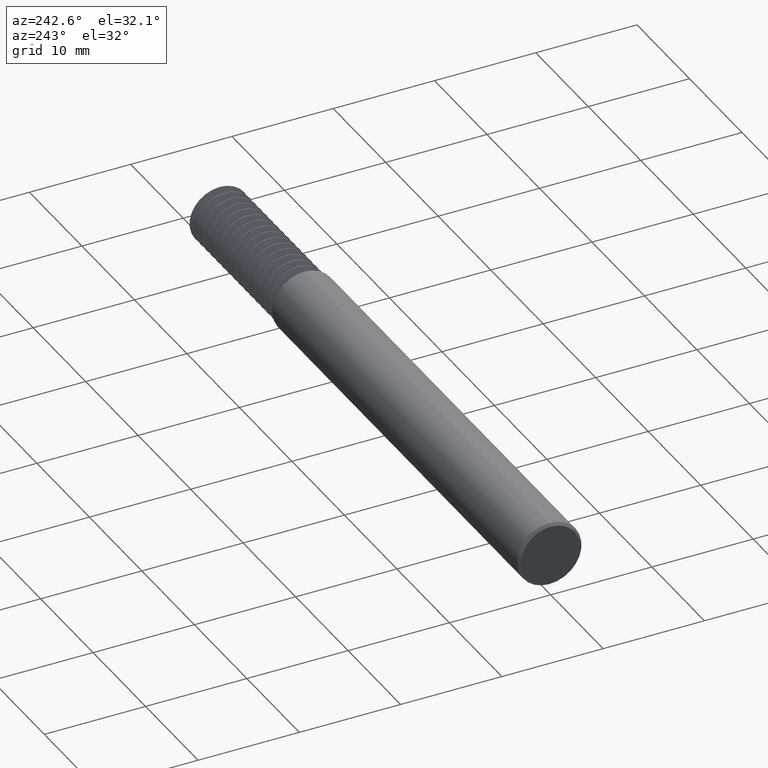
[diagram: clean part render]
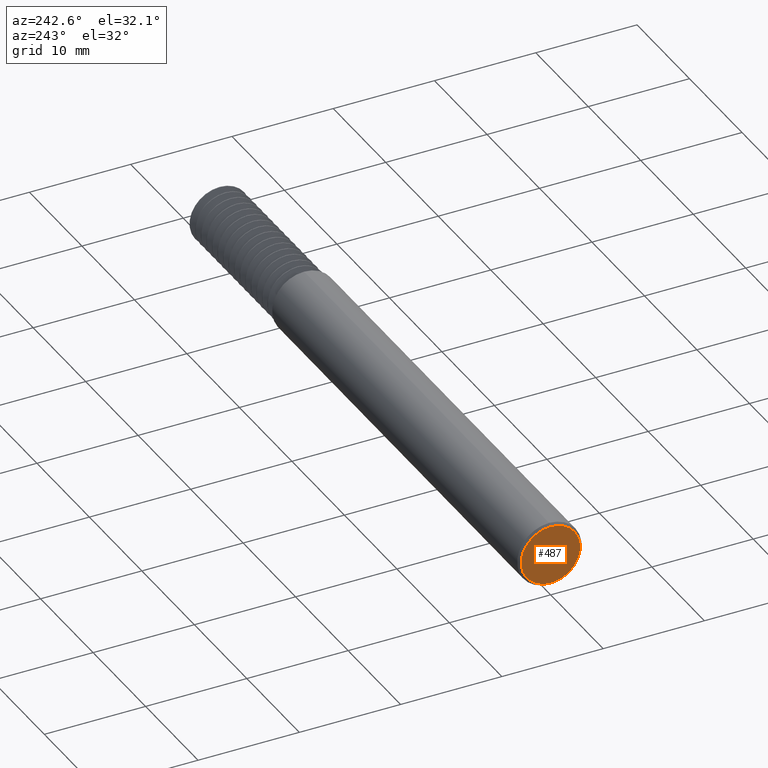
[diagram: same view with one face highlighted and labeled with its STEP entity id]
A machine part, auxiliary view. The second image highlights one B-rep face of the part: STEP entity #487.
In plain terms, the highlighted planar face has unit normal (-1, 0, 0).
Its self-contained STEP definition (entity closure, byte-faithful):
#183 = DIRECTION ( 'NONE',  ( 0.000000000000000000, 0.000000000000000000, 1.000000000000000000 ) ) ;
#309 = VERTEX_POINT ( 'NONE', #1693 ) ;
#344 = CIRCLE ( 'NONE', #3107, 0.1148499999999997301 ) ;
#487 = ADVANCED_FACE ( 'NONE', ( #2296 ), #2247, .T. ) ;
#716 = CIRCLE ( 'NONE', #2031, 0.1148499999999997301 ) ;
#845 = DIRECTION ( 'NONE',  ( -1.000000000000000000, 0.000000000000000000, 0.000000000000000000 ) ) ;
#979 = DIRECTION ( 'NONE',  ( -1.000000000000000000, 0.000000000000000000, 0.000000000000000000 ) ) ;
#1029 = CARTESIAN_POINT ( 'NONE',  ( 0.000000000000000000, 0.000000000000000000, 0.000000000000000000 ) ) ;
#1357 = DIRECTION ( 'NONE',  ( 0.000000000000000000, 0.000000000000000000, 1.000000000000000000 ) ) ;
#1474 = CARTESIAN_POINT ( 'NONE',  ( 0.000000000000000000, 0.000000000000000000, 0.000000000000000000 ) ) ;
#1580 = ORIENTED_EDGE ( 'NONE', *, *, #3133, .T. ) ;
#1693 = CARTESIAN_POINT ( 'NONE',  ( 0.000000000000000000, 1.467739188778101048E-17, 0.1148499999999997301 ) ) ;
#1887 = VERTEX_POINT ( 'NONE', #2283 ) ;
#2029 = DIRECTION ( 'NONE',  ( 0.000000000000000000, 0.000000000000000000, 1.000000000000000000 ) ) ;
#2031 = AXIS2_PLACEMENT_3D ( 'NONE', #1029, #845, #1357 ) ;
#2231 = EDGE_CURVE ( 'NONE', #1887, #309, #344, .T. ) ;
#2247 = PLANE ( 'NONE',  #2955 ) ;
#2283 = CARTESIAN_POINT ( 'NONE',  ( 0.000000000000000000, 0.000000000000000000, -0.1148499999999997301 ) ) ;
#2296 = FACE_OUTER_BOUND ( 'NONE', #2681, .T. ) ;
#2538 = DIRECTION ( 'NONE',  ( -1.000000000000000000, 0.000000000000000000, 0.000000000000000000 ) ) ;
#2681 = EDGE_LOOP ( 'NONE', ( #2913, #1580 ) ) ;
#2913 = ORIENTED_EDGE ( 'NONE', *, *, #2231, .T. ) ;
#2955 = AXIS2_PLACEMENT_3D ( 'NONE', #3371, #979, #2029 ) ;
#3107 = AXIS2_PLACEMENT_3D ( 'NONE', #1474, #2538, #183 ) ;
#3133 = EDGE_CURVE ( 'NONE', #309, #1887, #716, .T. ) ;
#3371 = CARTESIAN_POINT ( 'NONE',  ( 0.000000000000000000, 0.000000000000000000, 0.000000000000000000 ) ) ;